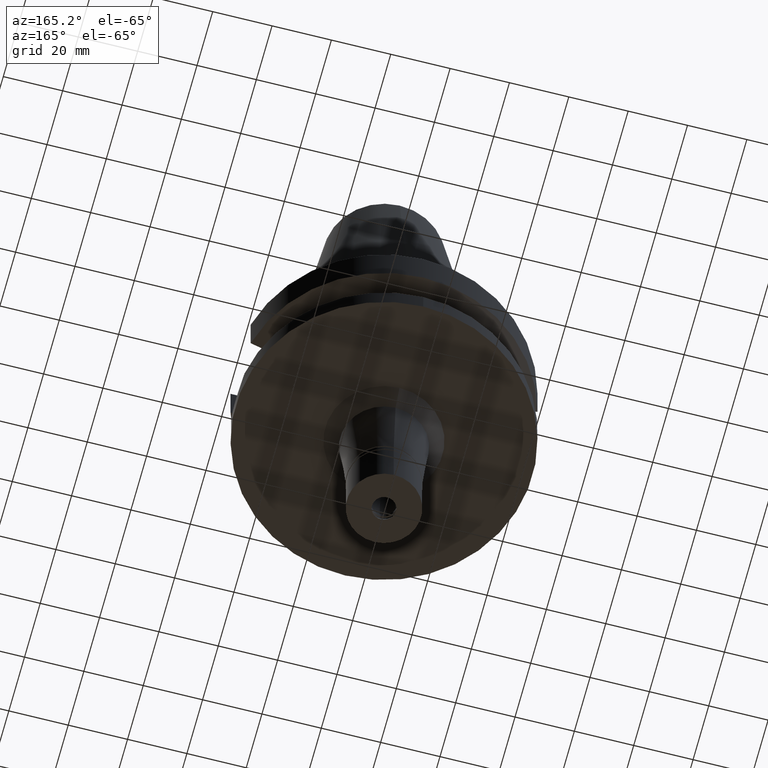
[diagram: clean part render]
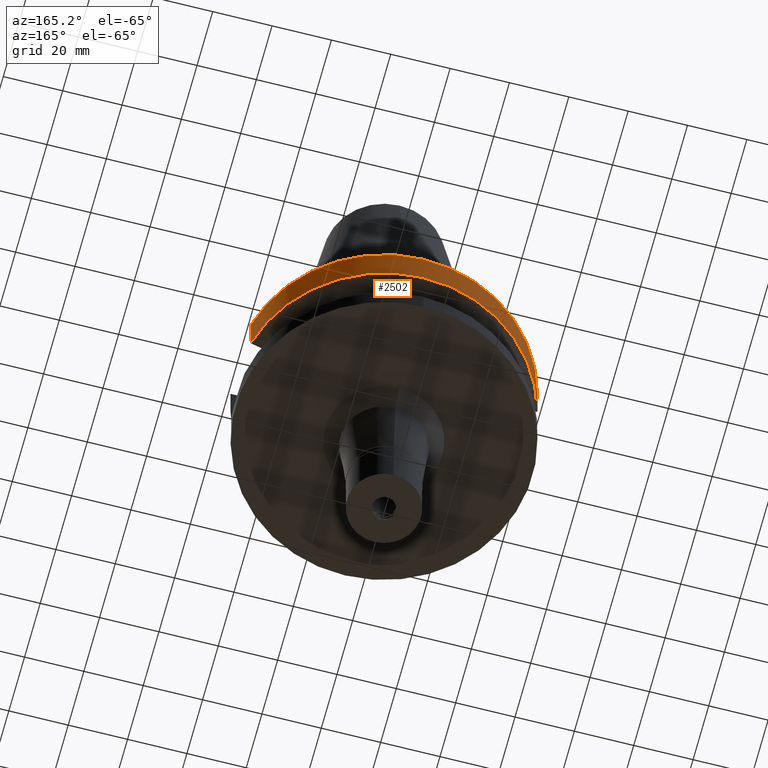
[diagram: same view with one face highlighted and labeled with its STEP entity id]
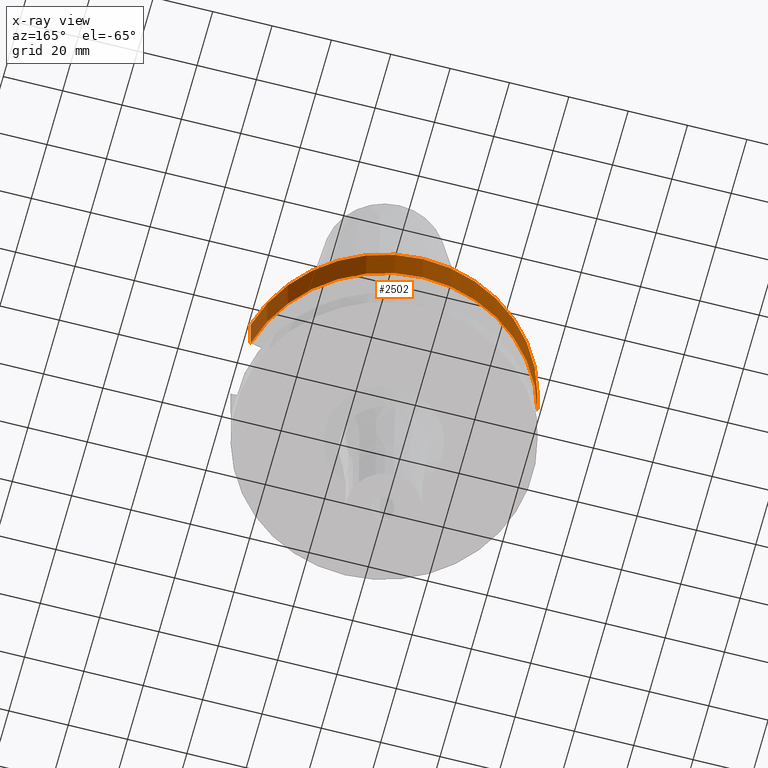
[diagram: x-ray of the same camera — body ghosted, the highlighted face saturated]
A machine part, auxiliary view. The second image highlights one B-rep face of the part: STEP entity #2502.
The next image is the same camera in x-ray: the body ghosted, the highlighted face saturated — about 0% of this face is hidden behind the body in this view.
In plain terms, the highlighted cylindrical surface (partial cylindrical patch) has radius 50 mm, axis along (0, 0, -1).
Its self-contained STEP definition (entity closure, byte-faithful):
#26 = EDGE_CURVE ( 'NONE', #2307, #1317, #1074, .T. ) ;
#93 = DIRECTION ( 'NONE',  ( 0.0000000000000000000, 0.0000000000000000000, -1.000000000000000000 ) ) ;
#216 = AXIS2_PLACEMENT_3D ( 'NONE', #2724, #2043, #1015 ) ;
#274 = EDGE_CURVE ( 'NONE', #1582, #348, #1955, .T. ) ;
#283 = AXIS2_PLACEMENT_3D ( 'NONE', #2300, #93, #1969 ) ;
#348 = VERTEX_POINT ( 'NONE', #956 ) ;
#428 = EDGE_CURVE ( 'NONE', #1582, #1317, #2170, .T. ) ;
#490 = CARTESIAN_POINT ( 'NONE',  ( 0.0000000000000000000, 2.584984463639999652E-14, -1.500000000000000000 ) ) ;
#531 = CIRCLE ( 'NONE', #216, 50.00000000000000000 ) ;
#956 = CARTESIAN_POINT ( 'NONE',  ( -48.32056913455000569, 12.85000383320999973, -15.66265789820000087 ) ) ;
#979 = EDGE_CURVE ( 'NONE', #2307, #348, #531, .T. ) ;
#1015 = DIRECTION ( 'NONE',  ( 0.0000000000000000000, 1.000000000000000000, 0.0000000000000000000 ) ) ;
#1037 = DIRECTION ( 'NONE',  ( 7.207667635776708306E-08, -2.710337623314894149E-07, 0.9999999999999606981 ) ) ;
#1050 = VECTOR ( 'NONE', #1924, 1000.000000000000000 ) ;
#1074 = LINE ( 'NONE', #3014, #2483 ) ;
#1151 = ORIENTED_EDGE ( 'NONE', *, *, #979, .T. ) ;
#1165 = ORIENTED_EDGE ( 'NONE', *, *, #274, .F. ) ;
#1317 = VERTEX_POINT ( 'NONE', #3170 ) ;
#1318 = FACE_OUTER_BOUND ( 'NONE', #2031, .T. ) ;
#1582 = VERTEX_POINT ( 'NONE', #2822 ) ;
#1924 = DIRECTION ( 'NONE',  ( 7.197621037931718556E-08, 2.706559726247894644E-07, -0.9999999999999608091 ) ) ;
#1955 = LINE ( 'NONE', #2935, #1050 ) ;
#1969 = DIRECTION ( 'NONE',  ( 0.0000000000000000000, -1.000000000000000000, 0.0000000000000000000 ) ) ;
#2031 = EDGE_LOOP ( 'NONE', ( #1165, #2848, #2872, #1151 ) ) ;
#2043 = DIRECTION ( 'NONE',  ( 0.0000000000000000000, 0.0000000000000000000, 1.000000000000000000 ) ) ;
#2170 = CIRCLE ( 'NONE', #3146, 50.00000000000000000 ) ;
#2193 = CARTESIAN_POINT ( 'NONE',  ( 48.32056913312000290, 12.85000383855999928, -15.66265785026000046 ) ) ;
#2300 = CARTESIAN_POINT ( 'NONE',  ( 0.0000000000000000000, 2.584984463639999652E-14, 111.0799999999999983 ) ) ;
#2307 = VERTEX_POINT ( 'NONE', #2193 ) ;
#2455 = DIRECTION ( 'NONE',  ( 0.0000000000000000000, 0.0000000000000000000, -1.000000000000000000 ) ) ;
#2483 = VECTOR ( 'NONE', #1037, 1000.000000000000114 ) ;
#2502 = ADVANCED_FACE ( 'NONE', ( #1318 ), #2946, .T. ) ;
#2724 = CARTESIAN_POINT ( 'NONE',  ( 0.0000000000000000000, 1.006319759053999930E-14, -15.66269223573000069 ) ) ;
#2822 = CARTESIAN_POINT ( 'NONE',  ( -48.32057015392000210, 12.84999999999999964, -1.500000000000000000 ) ) ;
#2848 = ORIENTED_EDGE ( 'NONE', *, *, #428, .T. ) ;
#2872 = ORIENTED_EDGE ( 'NONE', *, *, #26, .F. ) ;
#2935 = CARTESIAN_POINT ( 'NONE',  ( -48.32057015392000210, 12.84999999999999964, -1.500000000000000000 ) ) ;
#2946 = CYLINDRICAL_SURFACE ( 'NONE', #283, 50.00000000000000000 ) ;
#3014 = CARTESIAN_POINT ( 'NONE',  ( 48.32056913312000290, 12.85000383855999928, -15.66265785026000046 ) ) ;
#3146 = AXIS2_PLACEMENT_3D ( 'NONE', #490, #2455, #3178 ) ;
#3170 = CARTESIAN_POINT ( 'NONE',  ( 48.32057015392000210, 12.84999999999999964, -1.500000000000000000 ) ) ;
#3178 = DIRECTION ( 'NONE',  ( 0.0000000000000000000, 1.000000000000000000, 0.0000000000000000000 ) ) ;